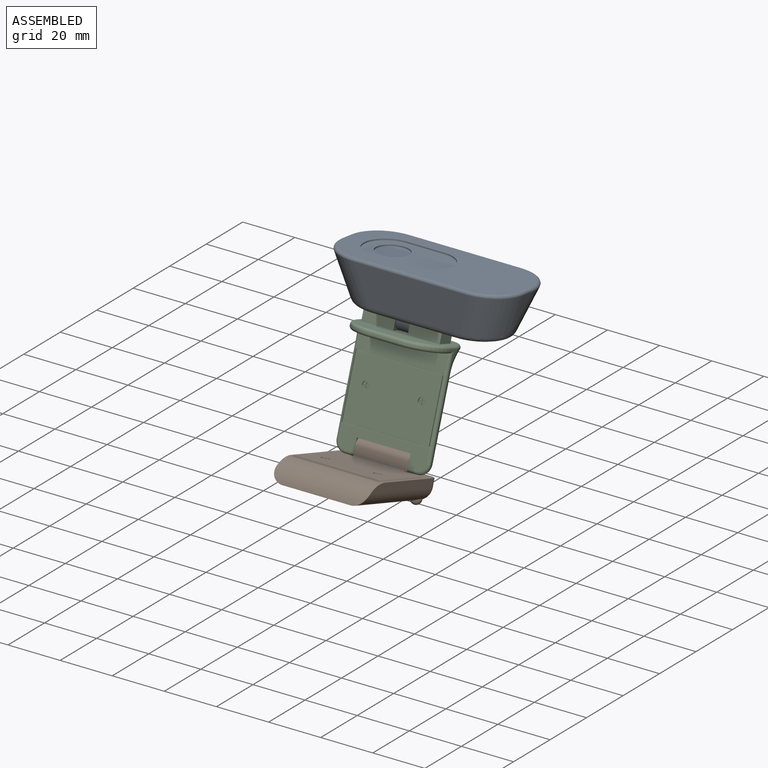
[diagram: assembled view]
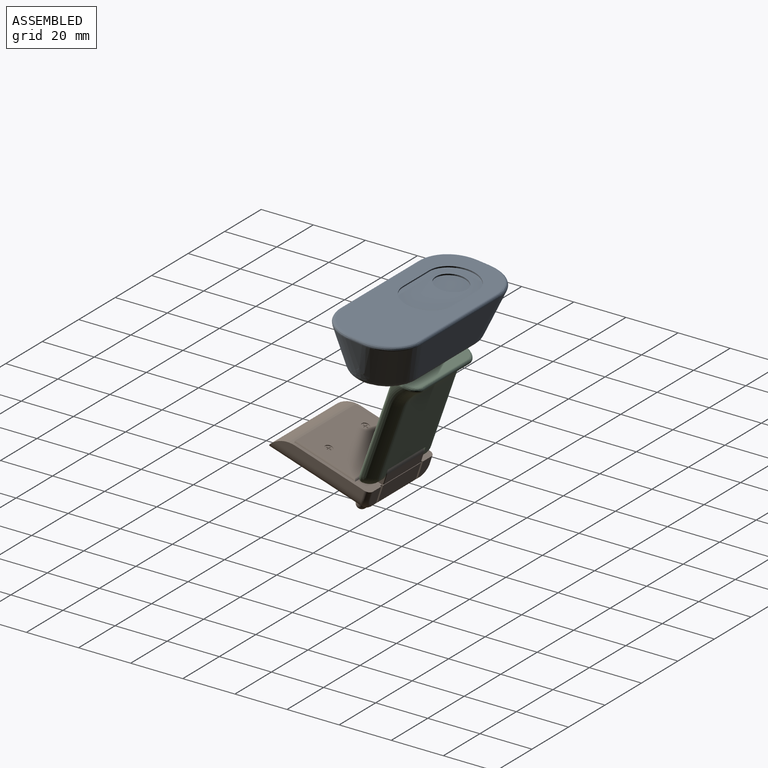
[diagram: assembled view, second angle]
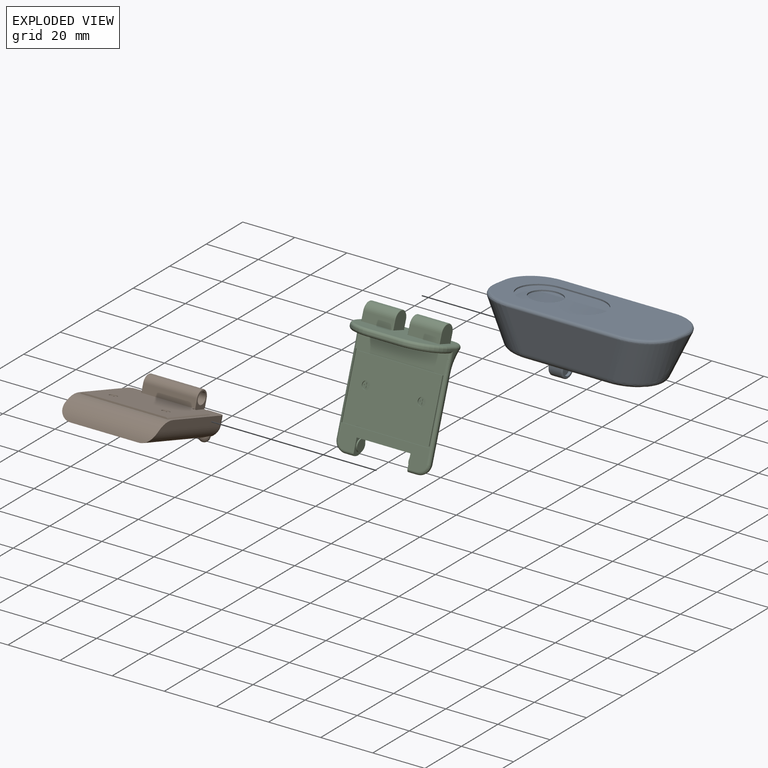
[diagram: exploded view]
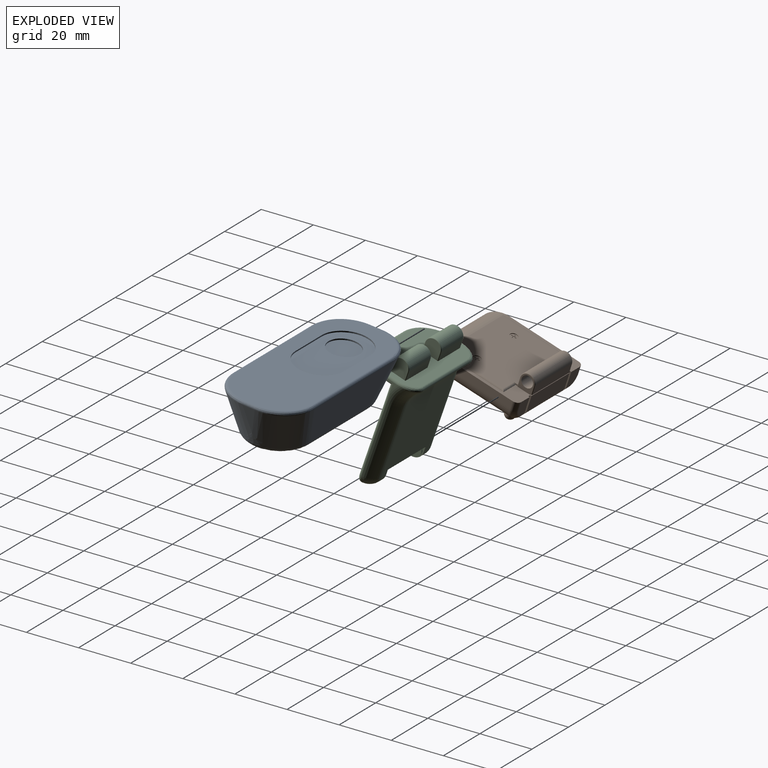
[diagram: exploded view, second angle]
ASSEMBLY  parts=3 mates=2
PART A: 48 faces, bbox 71.2x26.3x32.4 mm
  f0: cylinder r=2.25mm len=4.5mm, axis (1,0,0), area 14.1mm2, adj f22,f47
  f1: cylinder r=6mm len=12mm, axis (0,1,0), area 18.8mm2, adj f42,f46
  f2: cylinder r=9.3mm len=18.6mm, axis (0,1,0), area 14.6mm2, adj f5,f42,f43,f45
  f3: plane 53.57x18.88mm, normal (0,-1,0), area 887.2mm2, adj f14,f15,f16,f17,f18,f19,f20,f21
  f4: cylinder r=3.25mm len=6.5mm, axis (1,0,0), area 45.9mm2, adj f21,f23,f33,f36
  f5: plane 68.29x29.5mm, normal (0,1,0), area 1342.6mm2, adj f2,f24,f25,f26,f27,f28,f29,f30
  f6: plane 10.55x4.76mm, normal (-0.95,-0.33,0), area 26.6mm2, adj f12,f13,f27
  f7: plane 42.76x14.94mm, normal (0,-0.22,0.98), area 575.8mm2, adj f10,f13,f16,f24
  f8: plane 42.76x14.94mm, normal (0,-0.22,-0.98), area 575.8mm2, adj f11,f12,f17,f31
  f9: plane 10.55x4.76mm, normal (0.95,-0.33,0), area 26.6mm2, adj f10,f11,f28
  f10: cylinder r=14mm len=19.3mm, axis (-0.32,-0.92,-0.21), area 333.3mm2, adj f7,f9,f18,f26,f40
  f11: cylinder r=14mm len=19.3mm, axis (-0.32,-0.92,0.21), area 333.3mm2, adj f8,f9,f19,f30,f40
  f12: cylinder r=14mm len=19.3mm, axis (0.32,-0.92,0.21), area 333.3mm2, adj f6,f8,f15,f29,f38
  f13: cylinder r=14mm len=19.3mm, axis (0.32,-0.92,-0.21), area 333.3mm2, adj f6,f7,f14,f25,f38
  f14: bspline ~11.9x8.28mm, area 48.7mm2, adj f3,f13,f16,f39
  f15: bspline ~11.9x8.28mm, area 48.7mm2, adj f3,f12,f17,f39
  f16: cylinder r=3mm len=32.42mm, axis (1,0,0), area 131.2mm2, adj f3,f7,f14,f18
  f17: cylinder r=3mm len=32.42mm, axis (-1,0,0), area 131.2mm2, adj f3,f8,f15,f19
  f18: bspline ~11.9x8.28mm, area 48.7mm2, adj f3,f10,f16,f41
  f19: bspline ~11.9x8.28mm, area 48.7mm2, adj f3,f11,f17,f41
  f20: plane 6.15x5.5mm, normal (-1,0,0), area 30.6mm2, adj f3,f35,f36,f37
  f21: plane 4.5x3.4mm, normal (0,0,-1), area 15.3mm2, adj f3,f4,f32,f37
  f22: plane 6.15x5.5mm, normal (1,0,0), area 14.7mm2, adj f0,f3,f32,f33,f34
  f23: plane 4.5x3.4mm, normal (0,0,1), area 15.3mm2, adj f3,f4,f34,f35
  f24: cylinder r=1mm len=42.76mm, axis (-1,0,0), area 76.7mm2, adj f5,f7,f25,f26
  f25: bspline ~14.19x13.67mm, area 40.1mm2, adj f5,f13,f24,f27
  f26: bspline ~14.19x13.67mm, area 40.1mm2, adj f5,f10,f24,f28
  f27: cylinder r=1mm len=4.76mm, axis (0,0,-1), area 9.1mm2, adj f5,f6,f25,f29
  f28: cylinder r=1mm len=4.76mm, axis (0,0,1), area 9.1mm2, adj f5,f9,f26,f30
  f29: bspline ~14.19x13.67mm, area 40.1mm2, adj f5,f12,f27,f31
  f30: bspline ~14.19x13.67mm, area 40.1mm2, adj f5,f11,f28,f31
  f31: cylinder r=1mm len=42.76mm, axis (1,0,0), area 76.7mm2, adj f5,f8,f29,f30
  f32: cylinder r=0.5mm len=3.4mm, axis (0,1,0), area 2.7mm2, adj f3,f21,f22,f33
  f33: torus R=2.75mm, axis (-1,0,0), area 7.6mm2, adj f4,f22,f32,f34
  f34: cylinder r=0.5mm len=3.4mm, axis (0,1,0), area 2.7mm2, adj f3,f22,f23,f33
  f35: cylinder r=0.5mm len=3.4mm, axis (0,1,0), area 2.7mm2, adj f3,f20,f23,f36
  f36: torus R=2.75mm, axis (1,0,0), area 7.6mm2, adj f4,f20,f35,f37
  f37: cylinder r=0.5mm len=3.4mm, axis (0,1,0), area 2.7mm2, adj f3,f20,f21,f36
  f38: bspline ~11.19x5.3mm, area 32.4mm2, adj f12,f13,f39
  f39: bspline ~10.85x3.8mm, area 34.9mm2, adj f3,f14,f15,f38
  f40: bspline ~10.91x5.98mm, area 32mm2, adj f10,f11,f41
  f41: bspline ~10.85x3.8mm, area 34.9mm2, adj f3,f18,f19,f40
  f42: plane 33x18.6mm, normal (0,1,0), area 426.4mm2, adj f1,f2,f43,f44,f45
  f43: plane 14.4x0.5mm, normal (0,0,1), area 7.2mm2, adj f2,f5,f42,f44
  f44: cylinder r=9.3mm len=18.6mm, axis (0,1,0), area 14.6mm2, adj f5,f42,f43,f45
  f45: plane 14.4x0.5mm, normal (0,0,-1), area 7.2mm2, adj f2,f5,f42,f44
  f46: plane 12x12mm, normal (0,1,0), area 113.1mm2, adj f1
  f47: plane 4.5x4.5mm, normal (1,0,0), area 15.9mm2, adj f0
PART B: 85 faces, bbox 37x39.9x16.5 mm
  f0: cylinder r=2.25mm len=20.65mm, axis (-1,0,0), area 291.7mm2, adj f24,f26
  f1: cylinder r=1.5mm len=3mm, axis (0,0,1), area 2.4mm2, adj f51,f58
  f2: cylinder r=1.5mm len=3mm, axis (0,0,1), area 2.4mm2, adj f51,f57
  f3: sphere r=2mm, area 21.6mm2, adj f10,f11,f12,f14,f47
  f4: sphere r=2mm, area 21.6mm2, adj f7,f8,f9,f14,f48
  f5: plane 33.54x0.59mm, normal (0,-1,0), area 19.4mm2, adj f51,f53,f54,f56
  f6: plane 36.13x29.84mm, normal (0,0,1), area 173.1mm2, adj f15,f16,f17,f18,f19,f21,f23,f24
  f7: cylinder r=5mm len=37.65mm, axis (0,1,0), area 281mm2, adj f4,f9,f14,f23,f48,f56
  f8: cylinder r=2mm len=2mm, axis (1,0,0), area 5.2mm2, adj f4,f9,f14,f19,f36
  f9: torus R=3mm, axis (0,-1,0), area 20.2mm2, adj f4,f7,f8,f19,f43,f48
  f10: cylinder r=5mm len=37.65mm, axis (0,-1,0), area 281mm2, adj f3,f12,f14,f21,f47,f56
  f11: cylinder r=2mm len=2mm, axis (1,0,0), area 5.2mm2, adj f3,f12,f14,f18,f37
  f12: torus R=3mm, axis (0,-1,0), area 20.2mm2, adj f3,f10,f11,f18,f42,f47
  f13: plane 20.8x3.5mm, normal (0,0,-1), area 72.8mm2, adj f35,f38,f39,f46
  f14: plane 37.65x26.13mm, normal (0,0,-1), area 876.5mm2, adj f3,f4,f7,f8,f10,f11,f36,f37
  f15: plane 5.58x1mm, normal (0,1,0), area 5.6mm2, adj f6,f35,f36,f45
  f16: plane 5.58x1mm, normal (0,1,0), area 5.6mm2, adj f6,f37,f38,f44
  f17: plane 20.8x6.08mm, normal (0,1,0), area 126.5mm2, adj f6,f35,f38,f46
  f18: plane 6.08x4.67mm, normal (0,1,0), area 26.4mm2, adj f6,f11,f12,f37,f42
  f19: plane 6.08x4.67mm, normal (0,1,0), area 26.4mm2, adj f6,f8,f9,f36,f43
  f20: cylinder r=2.95mm len=20.15mm, axis (1,0,0), area 186.7mm2, adj f22,f25,f28,f31
  f21: plane 35.06x3.08mm, normal (1,0,0), area 101.1mm2, adj f6,f10,f42,f56
  f22: plane 20.15x3.43mm, normal (0,1,0), area 69.1mm2, adj f20,f27,f32,f33
  f23: plane 35.06x3.08mm, normal (-1,0,0), area 101.1mm2, adj f6,f7,f43,f56
  f24: plane 6.38x5.4mm, normal (-1,0,0), area 15.4mm2, adj f0,f6,f27,f28,f29,f33,f34
  f25: plane 20.15x3.18mm, normal (0,-1,0), area 64.1mm2, adj f20,f29,f30,f51
  f26: plane 6.38x5.4mm, normal (1,0,0), area 15.4mm2, adj f0,f6,f30,f31,f32,f33,f34
  f27: cylinder r=0.25mm len=3.43mm, axis (0,0,-1), area 1.3mm2, adj f22,f24,f28,f33
  f28: torus R=2.7mm, axis (1,0,0), area 3.5mm2, adj f20,f24,f27,f29
  f29: cylinder r=0.25mm len=3.68mm, axis (0,0,-1), area 1.4mm2, adj f6,f24,f25,f28,f50
  f30: cylinder r=0.25mm len=3.68mm, axis (0,0,-1), area 1.4mm2, adj f6,f25,f26,f31,f49
  f31: torus R=2.7mm, axis (-1,0,0), area 3.5mm2, adj f20,f26,f30,f32
  f32: cylinder r=0.25mm len=3.43mm, axis (0,0,-1), area 1.3mm2, adj f22,f26,f31,f33
  f33: plane 20.65x0.5mm, normal (0,0,-1), area 10.3mm2, adj f22,f24,f26,f27,f32,f34
  f34: plane 20.65x0.25mm, normal (0,1,0), area 5.2mm2, adj f6,f24,f26,f33
  f35: plane 8.08x5.5mm, normal (-1,0,0), area 6.5mm2, adj f6,f13,f15,f17,f39,f41,f45,f46
  f36: plane 8.08x6.5mm, normal (1,0,0), area 7mm2, adj f6,f8,f14,f15,f19,f40,f41,f45
  f37: plane 8.08x6.5mm, normal (-1,0,0), area 7mm2, adj f6,f11,f14,f16,f18,f40,f41,f44
  f38: plane 8.08x5.5mm, normal (1,0,0), area 6.5mm2, adj f6,f13,f16,f17,f39,f41,f44,f46
  f39: plane 20.8x0.5mm, normal (0,-1,0), area 10.4mm2, adj f13,f35,f38,f41
  f40: plane 22.8x0.5mm, normal (0,1,0), area 11.4mm2, adj f14,f36,f37,f41
  f41: plane 22.8x4mm, normal (0,0,-1), area 28.8mm2, adj f35,f36,f37,f38,f39,f40,f44,f45
  f42: cylinder r=2mm len=3.08mm, axis (0,0,-1), area 9.7mm2, adj f6,f12,f18,f21
  f43: cylinder r=2mm len=3.08mm, axis (0,0,-1), area 9.7mm2, adj f6,f9,f19,f23
  f44: cylinder r=2mm len=2mm, axis (1,0,0), area 3.1mm2, adj f16,f37,f38,f41
  f45: cylinder r=2mm len=2mm, axis (-1,0,0), area 3.1mm2, adj f15,f35,f36,f41
  f46: cylinder r=2mm len=20.8mm, axis (1,0,0), area 65.3mm2, adj f13,f17,f35,f38
  f47: cylinder r=2mm len=3.14mm, axis (0,0,1), area 1mm2, adj f3,f10,f12
  f48: cylinder r=2mm len=3.14mm, axis (0,0,1), area 1mm2, adj f4,f7,f9
  f49: plane 1.62x0.5mm, normal (1,0,0), area 0.5mm2, adj f6,f30,f51,f52
  f50: plane 1.62x0.5mm, normal (-1,0,0), area 0.5mm2, adj f6,f29,f51,f55
  f51: plane 31.72x25.25mm, normal (0,0,1), area 768mm2, adj f1,f2,f5,f25,f49,f50,f52,f53
  f52: cylinder r=1mm len=6.65mm, axis (1,0,0), area 6.5mm2, adj f6,f49,f51,f53
  f53: cylinder r=1mm len=24.5mm, axis (0,-1,0), area 25.3mm2, adj f5,f6,f51,f52,f56
  f54: cylinder r=1mm len=24.5mm, axis (0,1,0), area 25.3mm2, adj f5,f6,f51,f55,f56
  f55: cylinder r=1mm len=6.65mm, axis (1,0,0), area 6.5mm2, adj f6,f50,f51,f54
  f56: cylinder r=10mm len=36.13mm, axis (1,0,0), area 442.2mm2, adj f5,f6,f7,f10,f14,f21,f23,f53
  f57: plane 3x3mm, normal (0,0,1), area 5.8mm2, adj f2,f72,f73,f74,f75,f76,f77,f78
  f58: plane 3x3mm, normal (0,0,1), area 5.8mm2, adj f1,f59,f60,f61,f62,f63,f64,f65
  f59: plane 0.8x0.25mm, normal (0,-1,0), area 0.2mm2, adj f58,f60,f70,f71
  f60: plane 0.8x0.25mm, normal (1,0,0), area 0.2mm2, adj f58,f59,f61,f71
  f61: plane 0.35x0.25mm, normal (0,-1,0), area 0.1mm2, adj f58,f60,f62,f71
  f62: plane 0.8x0.25mm, normal (-1,0,0), area 0.2mm2, adj f58,f61,f63,f71
  f63: plane 0.8x0.25mm, normal (0,-1,0), area 0.2mm2, adj f58,f62,f64,f71
  f64: plane 0.35x0.25mm, normal (-1,0,0), area 0.1mm2, adj f58,f63,f65,f71
  f65: plane 0.8x0.25mm, normal (0,1,0), area 0.2mm2, adj f58,f64,f66,f71
  f66: plane 0.8x0.25mm, normal (-1,0,0), area 0.2mm2, adj f58,f65,f67,f71
  f67: plane 0.35x0.25mm, normal (0,1,0), area 0.1mm2, adj f58,f66,f68,f71
  f68: plane 0.8x0.25mm, normal (1,0,0), area 0.2mm2, adj f58,f67,f69,f71
  f69: plane 0.8x0.25mm, normal (0,1,0), area 0.2mm2, adj f58,f68,f70,f71
  f70: plane 0.35x0.25mm, normal (1,0,0), area 0.1mm2, adj f58,f59,f69,f71
  f71: plane 1.95x1.95mm, normal (0,0,1), area 1.2mm2, adj f59,f60,f61,f62,f63,f64,f65,f66
  f72: plane 0.8x0.25mm, normal (0,1,0), area 0.2mm2, adj f57,f73,f83,f84
  f73: plane 0.35x0.25mm, normal (1,0,0), area 0.1mm2, adj f57,f72,f74,f84
  f74: plane 0.8x0.25mm, normal (0,-1,0), area 0.2mm2, adj f57,f73,f75,f84
  f75: plane 0.8x0.25mm, normal (1,0,0), area 0.2mm2, adj f57,f74,f76,f84
  f76: plane 0.35x0.25mm, normal (0,-1,0), area 0.1mm2, adj f57,f75,f77,f84
  f77: plane 0.8x0.25mm, normal (-1,0,0), area 0.2mm2, adj f57,f76,f78,f84
  f78: plane 0.8x0.25mm, normal (0,-1,0), area 0.2mm2, adj f57,f77,f79,f84
  f79: plane 0.35x0.25mm, normal (-1,0,0), area 0.1mm2, adj f57,f78,f80,f84
  f80: plane 0.8x0.25mm, normal (0,1,0), area 0.2mm2, adj f57,f79,f81,f84
  f81: plane 0.8x0.25mm, normal (-1,0,0), area 0.2mm2, adj f57,f80,f82,f84
  f82: plane 0.35x0.25mm, normal (0,1,0), area 0.1mm2, adj f57,f81,f83,f84
  f83: plane 0.8x0.25mm, normal (1,0,0), area 0.2mm2, adj f57,f72,f82,f84
  f84: plane 1.95x1.95mm, normal (0,0,1), area 1.2mm2, adj f72,f73,f74,f75,f76,f77,f78,f79
PART C: 116 faces, bbox 38.1x49.7x25.1 mm
  f0: cylinder r=2.25mm len=4.5mm, axis (-1,0,0), area 7.1mm2, adj f17,f115
  f1: cylinder r=2.25mm len=4.5mm, axis (1,0,0), area 7.1mm2, adj f19,f114
  f2: cylinder r=2.25mm len=4.5mm, axis (1,0,0), area 14.1mm2, adj f70,f113
  f3: torus R=3mm, axis (1,0,0), area 3.9mm2, adj f6,f68,f102,f103
  f4: cylinder r=1.5mm len=3mm, axis (0,0,-1), area 4.7mm2, adj f59,f67
  f5: cylinder r=1.5mm len=3mm, axis (0,0,-1), area 4.7mm2, adj f59,f66
  f6: cylinder r=3.25mm len=11.8mm, axis (1,0,0), area 120.5mm2, adj f3,f69,f71,f105
  f7: cylinder r=3.25mm len=11.8mm, axis (1,0,0), area 120.5mm2, adj f73,f75,f108,f111
  f8: plane 34.11x20.38mm, normal (0,1,0), area 471.2mm2, adj f44,f45,f46,f47,f48,f49,f62,f65
  f9: plane 34.1x12mm, normal (0,-1,0), area 357.3mm2, adj f10,f36,f37,f38,f60,f63
  f10: plane 34.1x6.87mm, normal (0,0,-1), area 233.9mm2, adj f9,f34,f35,f40,f42,f51
  f11: plane 3.42x0.5mm, normal (0,-1,0), area 1.6mm2, adj f17,f23,f30,f31
  f12: plane 3.42x0.5mm, normal (0,-1,0), area 1.6mm2, adj f19,f22,f27,f39
  f13: plane 3.63x3.34mm, normal (1,0,0), area 3.4mm2, adj f25,f38,f40,f48,f64
  f14: plane 3.63x3.34mm, normal (-1,0,0), area 3.4mm2, adj f28,f35,f36,f44,f61
  f15: plane 29.38x25.4mm, normal (0,0,1), area 702.8mm2, adj f17,f18,f19,f22,f23,f24,f26,f29
  f16: plane 33.94x8.39mm, normal (0,0,-1), area 175mm2, adj f17,f18,f19,f31,f32,f33,f39,f41
  f17: plane 6.1x5.5mm, normal (1,0,0), area 14mm2, adj f0,f11,f15,f16,f18,f23,f31
  f18: plane 20.65x5.5mm, normal (0,-1,0), area 113.6mm2, adj f15,f16,f17,f19
  f19: plane 6.1x5.5mm, normal (-1,0,0), area 14mm2, adj f1,f12,f15,f16,f18,f22,f39
  f20: plane 12.1x0.5mm, normal (0,0,-1), area 6.1mm2, adj f37,f46,f61,f64
  f21: cylinder r=3mm len=25.5mm, axis (1,0,0), area 1.1mm2, adj f24,f25,f28,f45,f47,f49
  f22: cylinder r=4mm len=4mm, axis (1,0,0), area 14.9mm2, adj f12,f15,f19,f27
  f23: cylinder r=4mm len=4mm, axis (1,0,0), area 14.9mm2, adj f11,f15,f17,f30
  f24: cylinder r=10mm len=25.4mm, axis (1,0,0), area 219mm2, adj f15,f21,f25,f28
  f25: torus R=15.35mm, axis (-1,0,0), area 69.7mm2, adj f13,f21,f24,f26,f42,f49
  f26: cylinder r=5.35mm len=29.38mm, axis (0,1,0), area 216mm2, adj f15,f25,f27,f43
  f27: torus R=1.35mm, axis (0,1,0), area 32.1mm2, adj f12,f22,f26,f41
  f28: torus R=15.35mm, axis (1,0,0), area 69.7mm2, adj f14,f21,f24,f29,f34,f45
  f29: cylinder r=5.35mm len=29.38mm, axis (0,-1,0), area 216mm2, adj f15,f28,f30,f33
  f30: torus R=1.35mm, axis (0,1,0), area 32.1mm2, adj f11,f23,f29,f32
  f31: cylinder r=1mm len=3.42mm, axis (-1,0,0), area 5.4mm2, adj f11,f16,f17,f32
  f32: bspline ~4.44x4.04mm, area 10.3mm2, adj f16,f30,f31,f33
  f33: cylinder r=1mm len=29.38mm, axis (0,-1,0), area 51.9mm2, adj f16,f29,f32,f34,f52
  f34: bspline ~5.04x1.22mm, area 8.6mm2, adj f10,f28,f33,f35
  f35: cylinder r=1mm len=2.84mm, axis (0,1,0), area 3.7mm2, adj f10,f14,f34,f36
  f36: cylinder r=1mm len=2mm, axis (0,0,-1), area 2.4mm2, adj f9,f14,f35,f60
  f37: cylinder r=1mm len=12.1mm, axis (-1,0,0), area 19mm2, adj f9,f20,f60,f63
  f38: cylinder r=1mm len=2mm, axis (0,0,1), area 2.4mm2, adj f9,f13,f40,f63
  f39: cylinder r=1mm len=3.42mm, axis (-1,0,0), area 5.4mm2, adj f12,f16,f19,f41
  f40: cylinder r=1mm len=2.84mm, axis (0,-1,0), area 3.7mm2, adj f10,f13,f38,f42
  f41: bspline ~4.44x4.04mm, area 10.3mm2, adj f16,f27,f39,f43
  f42: bspline ~5.04x1.22mm, area 8.6mm2, adj f10,f25,f40,f43
  f43: cylinder r=1mm len=29.38mm, axis (0,1,0), area 51.9mm2, adj f16,f26,f41,f42,f50
  f44: cylinder r=1mm len=3.63mm, axis (0,0,-1), area 5.7mm2, adj f8,f14,f45,f62
  f45: bspline ~8.45x5.45mm, area 18.3mm2, adj f8,f21,f28,f44,f47
  f46: cylinder r=1mm len=12.1mm, axis (1,0,0), area 19mm2, adj f8,f20,f62,f65
  f47: cylinder r=1mm len=25.5mm, axis (1,0,0), area 61.7mm2, adj f8,f21,f45,f49
  f48: cylinder r=1mm len=3.63mm, axis (0,0,-1), area 5.7mm2, adj f8,f13,f49,f65
  f49: bspline ~6.73x5.32mm, area 18.3mm2, adj f8,f21,f25,f47,f48
  f50: plane 24x0.5mm, normal (-1,0,0), area 12mm2, adj f43,f51,f53,f54
  f51: plane 33.93x0.5mm, normal (0,-1,0), area 17mm2, adj f10,f50,f52,f54
  f52: plane 24x0.5mm, normal (1,0,0), area 12mm2, adj f33,f51,f53,f54
  f53: plane 33.93x0.5mm, normal (0,1,0), area 17mm2, adj f16,f50,f52,f54
  f54: plane 33.93x24mm, normal (0,0,-1), area 56.9mm2, adj f50,f51,f52,f53,f55,f56,f57,f58
  f55: plane 23x0.5mm, normal (1,0,0), area 11.5mm2, adj f54,f56,f58,f59
  f56: plane 32.93x0.5mm, normal (0,1,0), area 16.5mm2, adj f54,f55,f57,f59
  f57: plane 23x0.5mm, normal (-1,0,0), area 11.5mm2, adj f54,f56,f58,f59
  f58: plane 32.93x0.5mm, normal (0,-1,0), area 16.5mm2, adj f54,f55,f57,f59
  f59: plane 32.93x23mm, normal (0,0,-1), area 743.3mm2, adj f4,f5,f55,f56,f57,f58
  f60: torus R=11mm, axis (0,-1,0), area 28.7mm2, adj f9,f36,f37,f61
  f61: cylinder r=12mm len=12mm, axis (0,-1,0), area 9.4mm2, adj f14,f20,f60,f62
  f62: torus R=11mm, axis (0,-1,0), area 28.7mm2, adj f8,f44,f46,f61
  f63: torus R=11mm, axis (0,-1,0), area 28.7mm2, adj f9,f37,f38,f64
  f64: cylinder r=12mm len=12mm, axis (0,-1,0), area 9.4mm2, adj f13,f20,f63,f65
  f65: torus R=11mm, axis (0,-1,0), area 28.7mm2, adj f8,f46,f48,f64
  f66: plane 3x3mm, normal (0,0,-1), area 5.8mm2, adj f5,f76,f77,f78,f79,f80,f81,f82
  f67: plane 3x3mm, normal (0,0,-1), area 5.8mm2, adj f4,f89,f90,f91,f92,f93,f94,f95
  f68: plane 6.4x6mm, normal (-1,0,0), area 34.5mm2, adj f3,f8,f102,f103
  f69: plane 11.8x3.4mm, normal (0,0,1), area 40.1mm2, adj f6,f8,f103,f106
  f70: plane 6.4x6mm, normal (1,0,0), area 18.6mm2, adj f2,f8,f104,f105,f106
  f71: plane 11.8x3.4mm, normal (0,0,-1), area 40.1mm2, adj f6,f8,f102,f104
  f72: plane 6.4x6mm, normal (-1,0,0), area 34.5mm2, adj f8,f107,f108,f109
  f73: plane 11.8x3.4mm, normal (0,0,1), area 40.1mm2, adj f7,f8,f109,f112
  f74: plane 6.4x6mm, normal (1,0,0), area 34.5mm2, adj f8,f110,f111,f112
  f75: plane 11.8x3.4mm, normal (0,0,-1), area 40.1mm2, adj f7,f8,f107,f110
  f76: plane 0.35x0.25mm, normal (-1,0,0), area 0.1mm2, adj f66,f77,f87,f88
  f77: plane 0.8x0.25mm, normal (0,-1,0), area 0.2mm2, adj f66,f76,f78,f88
  f78: plane 0.8x0.25mm, normal (-1,0,0), area 0.2mm2, adj f66,f77,f79,f88
  f79: plane 0.35x0.25mm, normal (0,-1,0), area 0.1mm2, adj f66,f78,f80,f88
  f80: plane 0.8x0.25mm, normal (1,0,0), area 0.2mm2, adj f66,f79,f81,f88
  f81: plane 0.8x0.25mm, normal (0,-1,0), area 0.2mm2, adj f66,f80,f82,f88
  f82: plane 0.35x0.25mm, normal (1,0,0), area 0.1mm2, adj f66,f81,f83,f88
  f83: plane 0.8x0.25mm, normal (0,1,0), area 0.2mm2, adj f66,f82,f84,f88
  f84: plane 0.8x0.25mm, normal (1,0,0), area 0.2mm2, adj f66,f83,f85,f88
  f85: plane 0.35x0.25mm, normal (0,1,0), area 0.1mm2, adj f66,f84,f86,f88
  f86: plane 0.8x0.25mm, normal (-1,0,0), area 0.2mm2, adj f66,f85,f87,f88
  f87: plane 0.8x0.25mm, normal (0,1,0), area 0.2mm2, adj f66,f76,f86,f88
  f88: plane 1.95x1.95mm, normal (0,0,-1), area 1.2mm2, adj f76,f77,f78,f79,f80,f81,f82,f83
  f89: plane 0.8x0.25mm, normal (0,1,0), area 0.2mm2, adj f67,f90,f100,f101
  f90: plane 0.8x0.25mm, normal (1,0,0), area 0.2mm2, adj f67,f89,f91,f101
  f91: plane 0.35x0.25mm, normal (0,1,0), area 0.1mm2, adj f67,f90,f92,f101
  f92: plane 0.8x0.25mm, normal (-1,0,0), area 0.2mm2, adj f67,f91,f93,f101
  f93: plane 0.8x0.25mm, normal (0,1,0), area 0.2mm2, adj f67,f92,f94,f101
  f94: plane 0.35x0.25mm, normal (-1,0,0), area 0.1mm2, adj f67,f93,f95,f101
  f95: plane 0.8x0.25mm, normal (0,-1,0), area 0.2mm2, adj f67,f94,f96,f101
  f96: plane 0.8x0.25mm, normal (-1,0,0), area 0.2mm2, adj f67,f95,f97,f101
  f97: plane 0.35x0.25mm, normal (0,-1,0), area 0.1mm2, adj f67,f96,f98,f101
  f98: plane 0.8x0.25mm, normal (1,0,0), area 0.2mm2, adj f67,f97,f99,f101
  f99: plane 0.8x0.25mm, normal (0,-1,0), area 0.2mm2, adj f67,f98,f100,f101
  f100: plane 0.35x0.25mm, normal (1,0,0), area 0.1mm2, adj f67,f89,f99,f101
  f101: plane 1.95x1.95mm, normal (0,0,-1), area 1.2mm2, adj f89,f90,f91,f92,f93,f94,f95,f96
  f102: cylinder r=0.25mm len=3.4mm, axis (0,-1,0), area 1.3mm2, adj f3,f8,f68,f71
  f103: cylinder r=0.25mm len=3.4mm, axis (0,-1,0), area 1.3mm2, adj f3,f8,f68,f69
  f104: cylinder r=0.25mm len=3.4mm, axis (0,-1,0), area 1.3mm2, adj f8,f70,f71,f105
  f105: torus R=3mm, axis (-1,0,0), area 3.9mm2, adj f6,f70,f104,f106
  f106: cylinder r=0.25mm len=3.4mm, axis (0,-1,0), area 1.3mm2, adj f8,f69,f70,f105
  f107: cylinder r=0.25mm len=3.4mm, axis (0,-1,0), area 1.3mm2, adj f8,f72,f75,f108
  f108: torus R=3mm, axis (1,0,0), area 3.9mm2, adj f7,f72,f107,f109
  f109: cylinder r=0.25mm len=3.4mm, axis (0,-1,0), area 1.3mm2, adj f8,f72,f73,f108
  f110: cylinder r=0.25mm len=3.4mm, axis (0,-1,0), area 1.3mm2, adj f8,f74,f75,f111
  f111: torus R=3mm, axis (-1,0,0), area 3.9mm2, adj f7,f74,f110,f112
  f112: cylinder r=0.25mm len=3.4mm, axis (0,-1,0), area 1.3mm2, adj f8,f73,f74,f111
  f113: plane 4.5x4.5mm, normal (1,0,0), area 15.9mm2, adj f2
  f114: plane 4.5x4.5mm, normal (-1,0,0), area 15.9mm2, adj f1
  f115: plane 4.5x4.5mm, normal (1,0,0), area 15.9mm2, adj f0
PLACE A rot(axis=(1,0,0),83.3deg) t=(-57.63,-5.21,66.62)mm fixed
PLACE B rot(axis=(-1,0,0),17.8deg) t=(-66.57,-35.75,-3.45)mm
PLACE C rot(axis=(0,0.82,0.58),180deg) t=(-66.57,-16.85,21.61)mm
MATE revolute A.f33 <-> C.f108  axis (1,0,0) through (-63.82,-8.59,44.97)mm
MATE revolute B.f0 <-> C.f1  axis (1,0,0) through (-56.24,-20.12,3.88)mm
